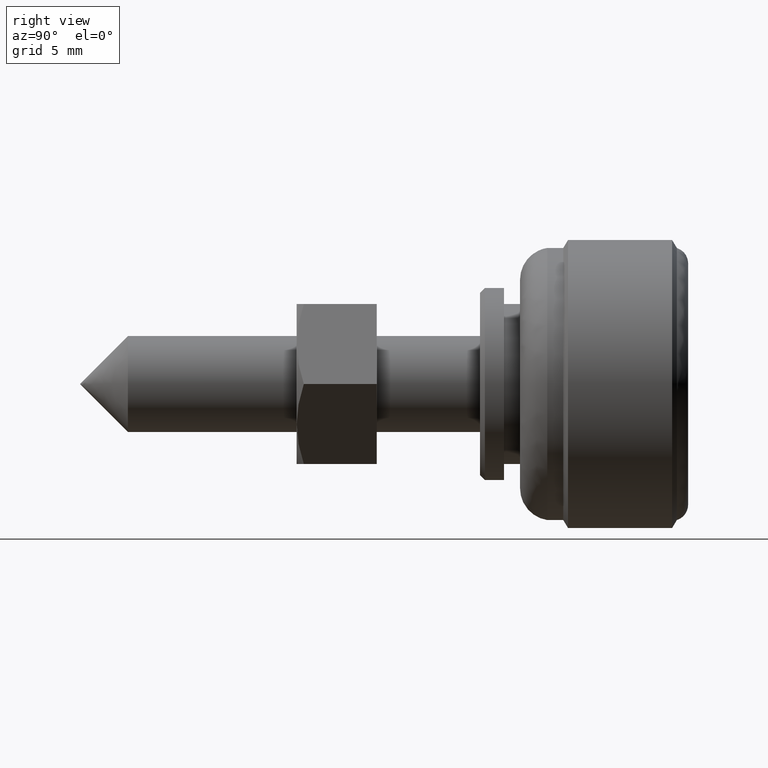
[diagram: clean part render]
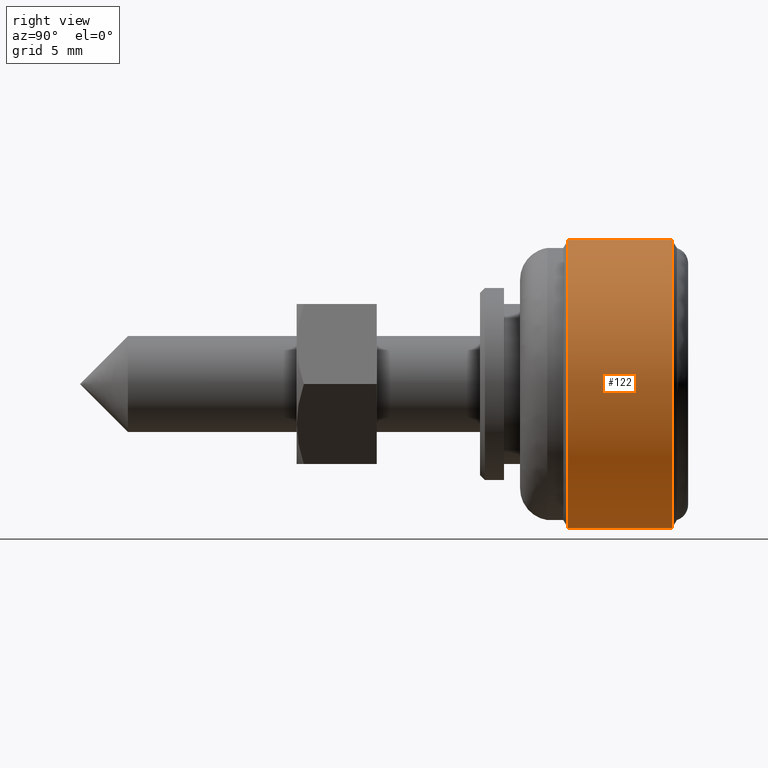
[diagram: same view with one face highlighted and labeled with its STEP entity id]
A machine part, right view. The second image highlights one B-rep face of the part: STEP entity #122.
In plain terms, the highlighted cylindrical surface (partial cylindrical patch) has radius 9 mm, axis along (0, -1, 0).
Its self-contained STEP definition (entity closure, byte-faithful):
#122=ADVANCED_FACE('',(#258),#257,.T.);
#257=CYLINDRICAL_SURFACE('',#659,9.00000000000E+00);
#258=FACE_OUTER_BOUND('',#660,.T.);
#656=CARTESIAN_POINT('',(0.00000000000E+00,0.00000000000E+00,0.00000000000E+00));
#657=DIRECTION('',(0.00000000000E+00,-1.00000000000E+00,-0.00000000000E+00));
#658=DIRECTION('',(0.00000000000E+00,0.00000000000E+00,-1.00000000000E+00));
#659=AXIS2_PLACEMENT_3D('',#656,#657,#658);
#660=EDGE_LOOP('',(#974,#975,#976,#977));
#974=ORIENTED_EDGE('',*,*,#1137,.T.);
#975=ORIENTED_EDGE('',*,*,#1142,.F.);
#976=ORIENTED_EDGE('',*,*,#1143,.F.);
#977=ORIENTED_EDGE('',*,*,#1144,.T.);
#1137=EDGE_CURVE('',#1328,#1327,#1361,.T.);
#1142=EDGE_CURVE('',#1393,#1327,#1394,.T.);
#1143=EDGE_CURVE('',#1400,#1393,#1401,.T.);
#1144=EDGE_CURVE('',#1400,#1328,#1407,.T.);
#1327=VERTEX_POINT('',#1868);
#1328=VERTEX_POINT('',#1869);
#1361=CIRCLE('',#1891,9.00000000000E+00);
#1393=VERTEX_POINT('',#1906);
#1394=(BOUNDED_CURVE() B_SPLINE_CURVE(1,(#1907,#1908),.UNSPECIFIED.,.F.,.F.) B_SPLINE_CURVE_WITH_KNOTS((2,2),(8.33333347523E-02,9.16666664312E-01),.UNSPECIFIED.) CURVE() GEOMETRIC_REPRESENTATION_ITEM() RATIONAL_B_SPLINE_CURVE((1.00000000000E+00,1.00000000000E+00)) REPRESENTATION_ITEM('') );
#1400=VERTEX_POINT('',#1909);
#1401=CIRCLE('',#1913,9.00000000000E+00);
#1407=(BOUNDED_CURVE() B_SPLINE_CURVE(1,(#1914,#1915),.UNSPECIFIED.,.F.,.F.) B_SPLINE_CURVE_WITH_KNOTS((2,2),(8.33333333333E-02,9.16666666667E-01),.UNSPECIFIED.) CURVE() GEOMETRIC_REPRESENTATION_ITEM() RATIONAL_B_SPLINE_CURVE((7.50000000000E-01,7.50000000000E-01)) REPRESENTATION_ITEM('') );
#1868=CARTESIAN_POINT('',(8.88178419700E-16,3.05000000000E+01,-9.00000000000E+00));
#1869=CARTESIAN_POINT('',(0.00000000000E+00,3.05000000000E+01,9.00000000000E+00));
#1888=CARTESIAN_POINT('',(0.00000000000E+00,3.05000000000E+01,0.00000000000E+00));
#1889=DIRECTION('',(0.00000000000E+00,1.00000000000E+00,-0.00000000000E+00));
#1890=DIRECTION('',(-1.22460635382E-16,0.00000000000E+00,1.00000000000E+00));
#1891=AXIS2_PLACEMENT_3D('',#1888,#1889,#1890);
#1906=CARTESIAN_POINT('',(8.88178419700E-16,3.70000000000E+01,-9.00000000000E+00));
#1907=CARTESIAN_POINT('',(0.00000000000E+00,3.69999999889E+01,-9.00000000000E+00));
#1908=CARTESIAN_POINT('',(0.00000000000E+00,3.05000000184E+01,-9.00000000000E+00));
#1909=CARTESIAN_POINT('',(0.00000000000E+00,3.70000000000E+01,9.00000000000E+00));
#1910=CARTESIAN_POINT('',(0.00000000000E+00,3.70000000000E+01,0.00000000000E+00));
#1911=DIRECTION('',(0.00000000000E+00,1.00000000000E+00,-0.00000000000E+00));
#1912=DIRECTION('',(-1.22460635382E-16,0.00000000000E+00,1.00000000000E+00));
#1913=AXIS2_PLACEMENT_3D('',#1910,#1911,#1912);
#1914=CARTESIAN_POINT('',(-2.96059473233E-16,3.70000000000E+01,9.00000000000E+00));
#1915=CARTESIAN_POINT('',(-2.96059473233E-16,3.05000000000E+01,9.00000000000E+00));